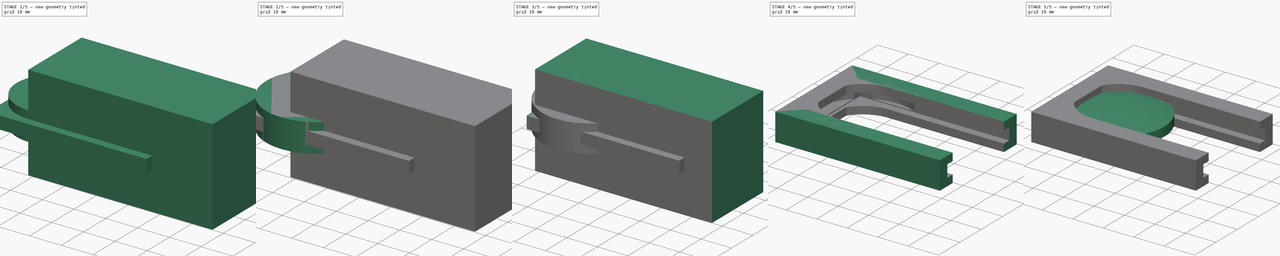
[diagram: build sequence overview — one tinted view per stage of 5, left to right]
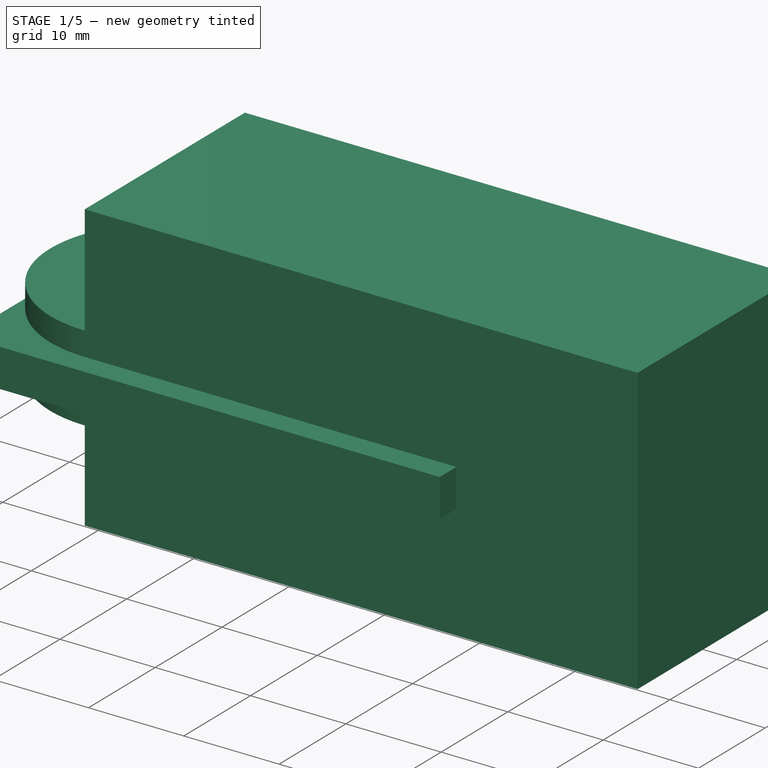
[diagram: stage 1 of 5 — iso view after this stage's code; geometry added in this stage tinted green]
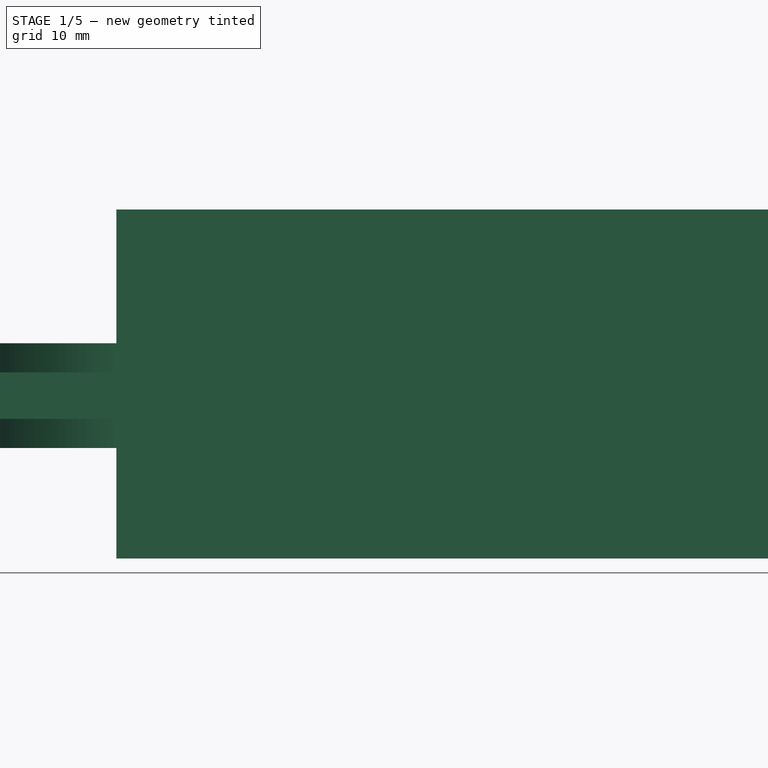
[diagram: stage 1 of 5 — front view after this stage's code; geometry added in this stage tinted green]
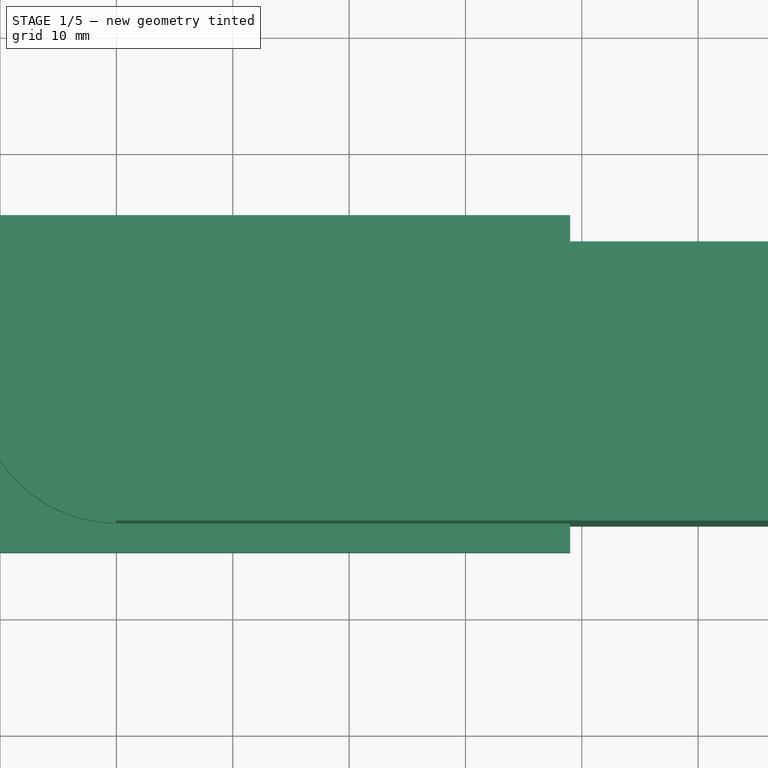
[diagram: stage 1 of 5 — top view after this stage's code; geometry added in this stage tinted green]
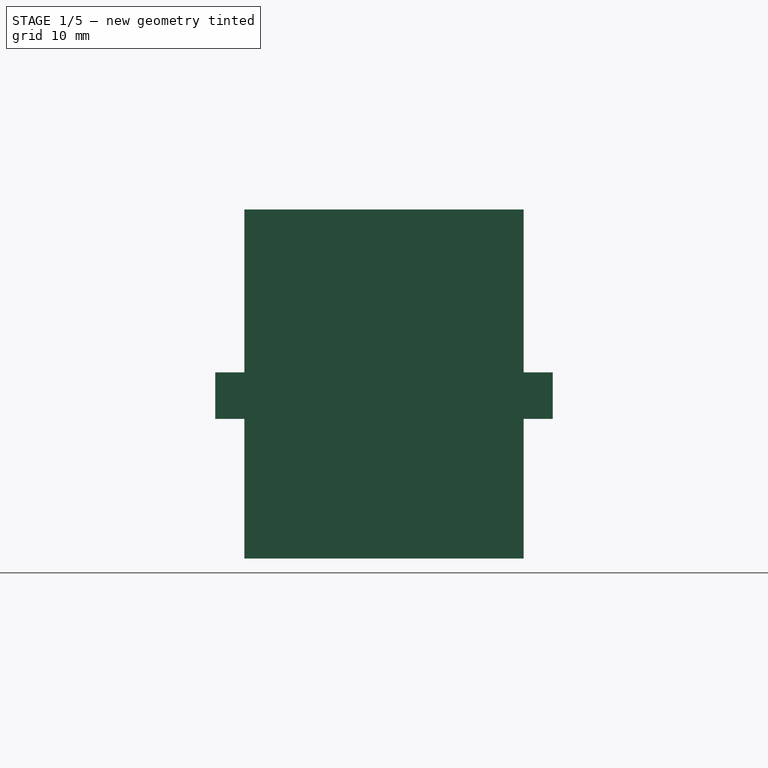
[diagram: stage 1 of 5 — right view after this stage's code; geometry added in this stage tinted green]
FCSTD DOCUMENT  (FreeCAD 0.18.4R)
Label: lens_holder
License: All rights reserved
LicenseURL: http://en.wikipedia.org/wiki/All_rights_reserved
objects: Part::Box×4, Part::Cylinder×3, Part::Compound×2, App::Part×2, Part::MultiFuse×2, Part::Cut×2, PartDesign::Body×1, Sketcher::SketchObject×1, PartDesign::Revolution×1, Part::Mirroring×1, Spreadsheet::Sheet×1
note: 18 computed .brp shape members not serialized (recipe doc carries the construction recipe); baked Part::Feature solids carry a one-line shape summary decoded from their .brp

FEATURE [Part::Box] Box002  label="inner lens extraction cube"
  AttacherType = Attacher::AttachEngine3D
  Height = 4
  Length = 50
  Placement = pos=(-11,-14.5,-2) rot=(0,0,1;0rad)
  Width = 29
FEATURE [Part::Box] Box003  label="inner cut cube001"
  AttacherType = Attacher::AttachEngine3D
  Height = 30
  Length = 58
  Placement = pos=(0,-12,-14) rot=(0,0,1;0rad)
  Width = 24
FEATURE [Part::Cylinder] Cylinder002  label="lens hole002"
  Angle = 360
  AttacherType = Attacher::AttachEngine3D
  Height = 9
  Placement = pos=(0,0,-4.5) rot=(0,0,1;0rad)
  Radius = 12
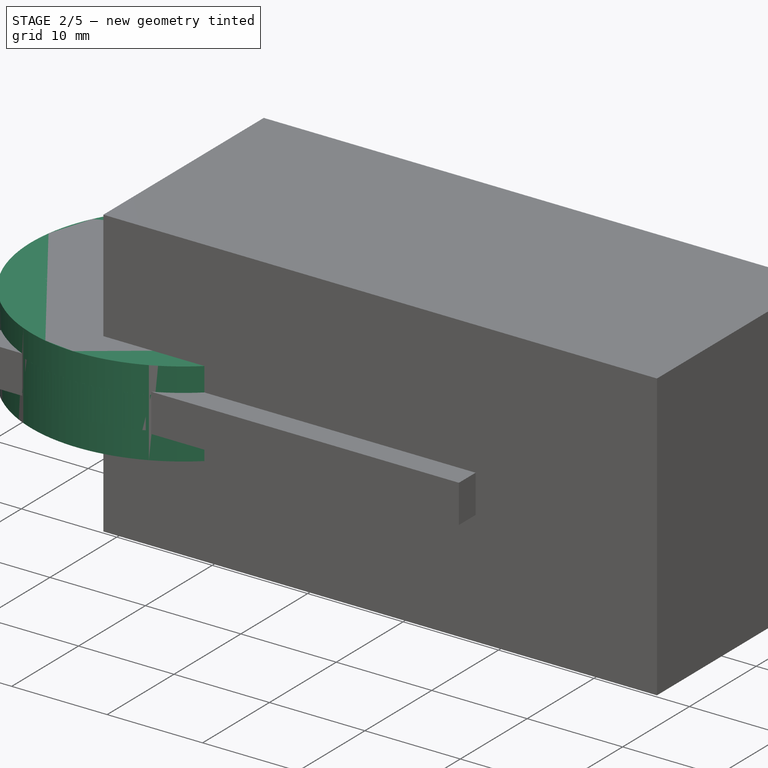
[diagram: stage 2 of 5 — iso view after this stage's code; geometry added in this stage tinted green]
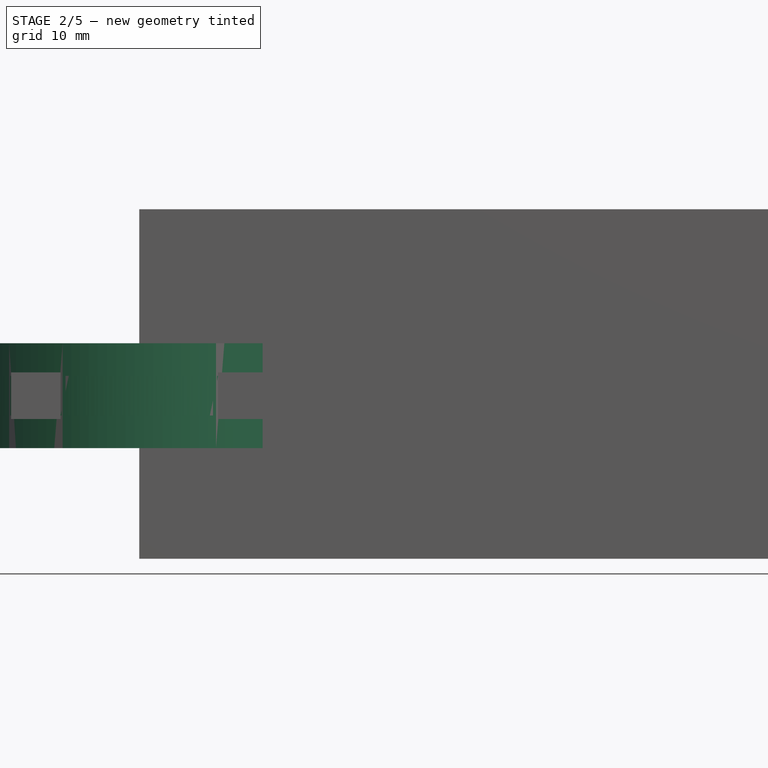
[diagram: stage 2 of 5 — front view after this stage's code; geometry added in this stage tinted green]
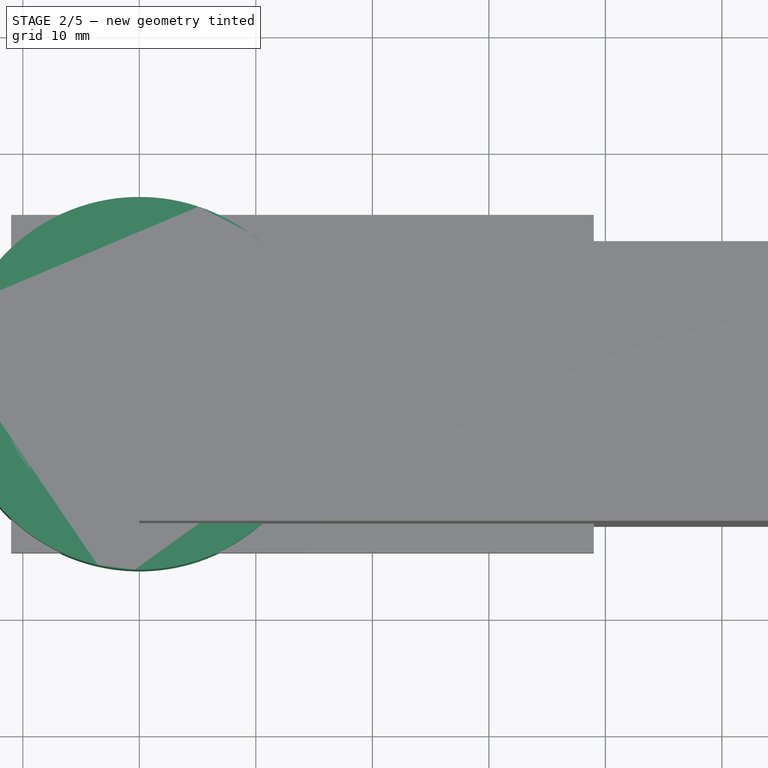
[diagram: stage 2 of 5 — top view after this stage's code; geometry added in this stage tinted green]
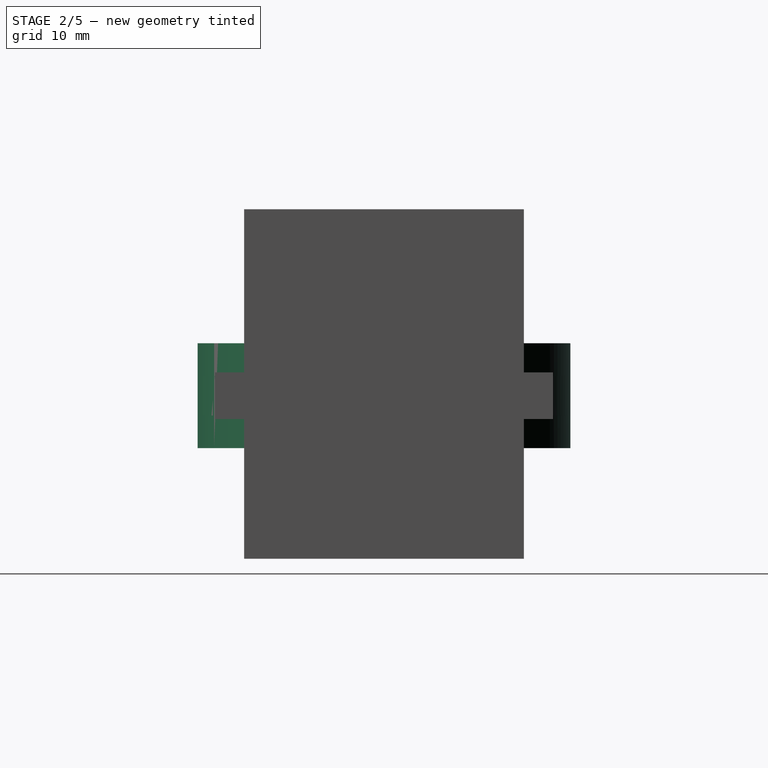
[diagram: stage 2 of 5 — right view after this stage's code; geometry added in this stage tinted green]
FEATURE [Part::Cylinder] Cylinder  label="lens hole"
  Angle = 360
  AttacherType = Attacher::AttachEngine3D
  Height = 3.4
  Placement = pos=(0,0,-1.7) rot=(0,0,1;0rad)
  Radius = 16
FEATURE [Part::Cylinder] Cylinder001  label="lens hole001"
  Angle = 360
  AttacherType = Attacher::AttachEngine3D
  Height = 9
  Placement = pos=(0,0,-4.5) rot=(0,0,1;0rad)
  Radius = 16
FEATURE [Part::MultiFuse] Fusion001  label="another cut fusion"
  Shapes = -> [Cylinder,Box002,Box003,Cylinder002]
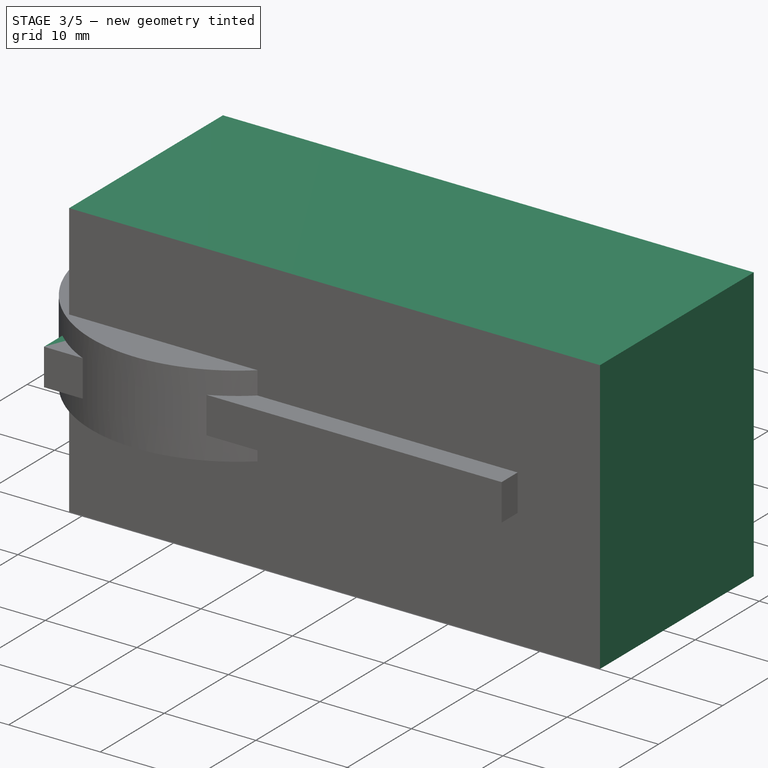
[diagram: stage 3 of 5 — iso view after this stage's code; geometry added in this stage tinted green]
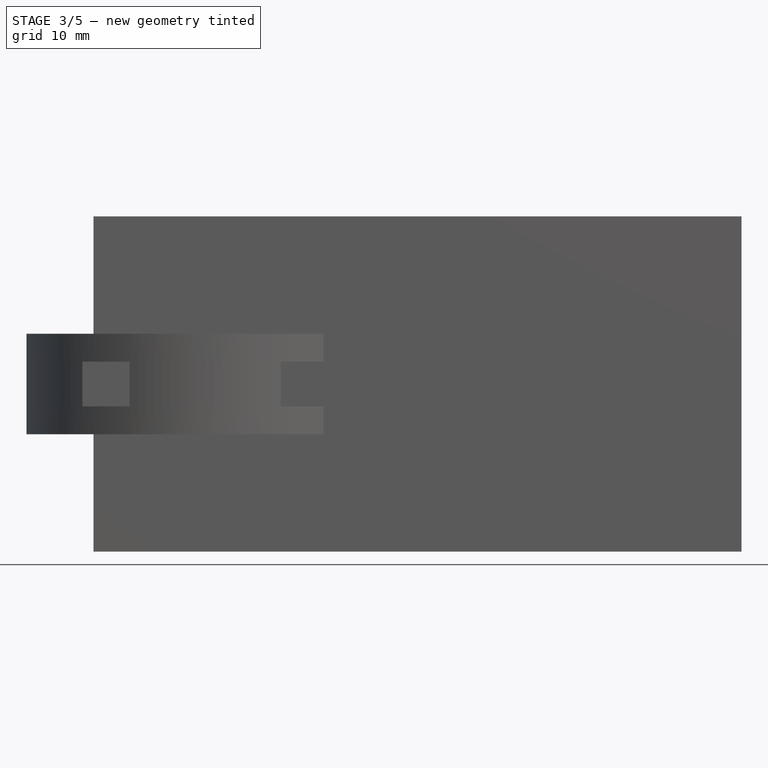
[diagram: stage 3 of 5 — front view after this stage's code; geometry added in this stage tinted green]
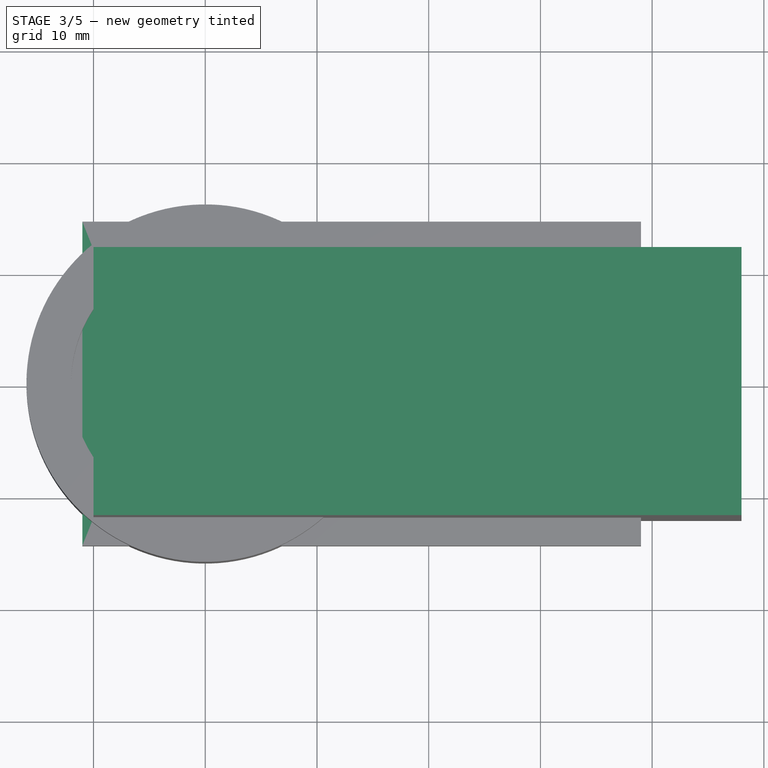
[diagram: stage 3 of 5 — top view after this stage's code; geometry added in this stage tinted green]
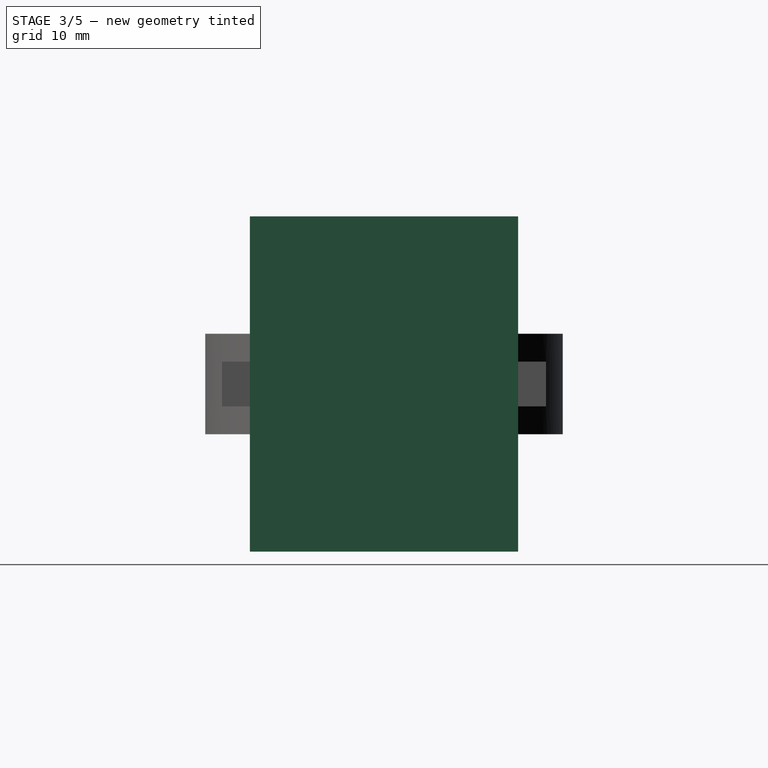
[diagram: stage 3 of 5 — right view after this stage's code; geometry added in this stage tinted green]
FEATURE [Part::Box] Box001  label="inner cut cube"
  AttacherType = Attacher::AttachEngine3D
  Height = 30
  Length = 58
  Placement = pos=(-10,-12,-15) rot=(0,0,1;0rad)
  Width = 24
FEATURE [Part::MultiFuse] Fusion  label="holder cut fusion"
  Shapes = -> [Box001,Cylinder,Box002]
FEATURE [Part::Cut] Cut001
  Base = -> Cylinder001
  Tool = -> Fusion001
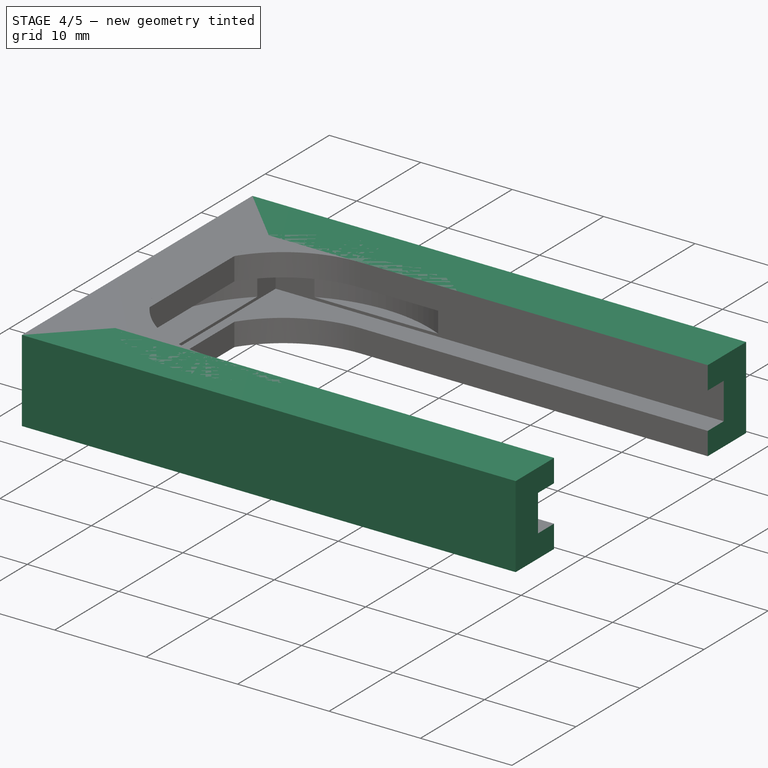
[diagram: stage 4 of 5 — iso view after this stage's code; geometry added in this stage tinted green]
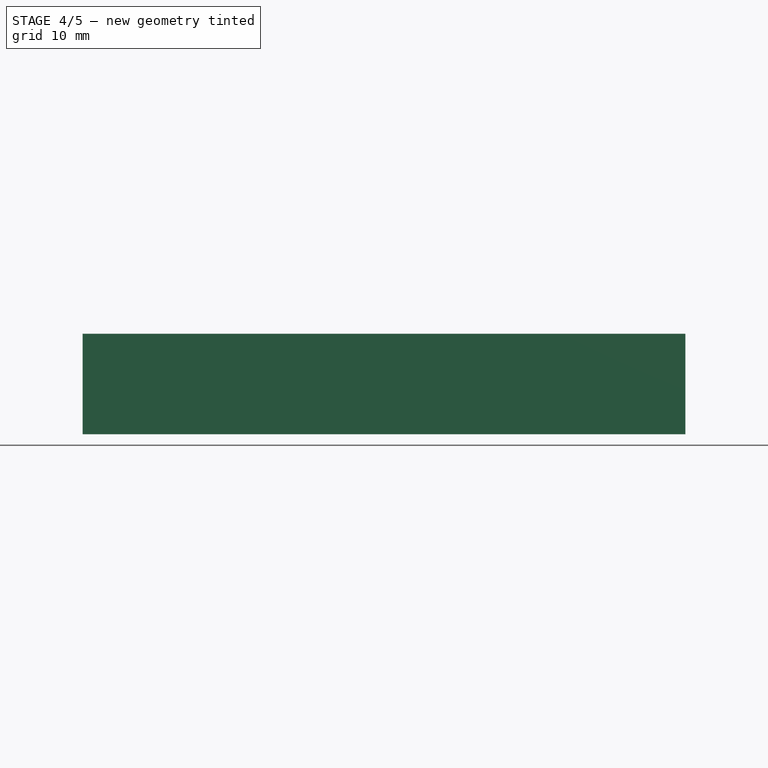
[diagram: stage 4 of 5 — front view after this stage's code; geometry added in this stage tinted green]
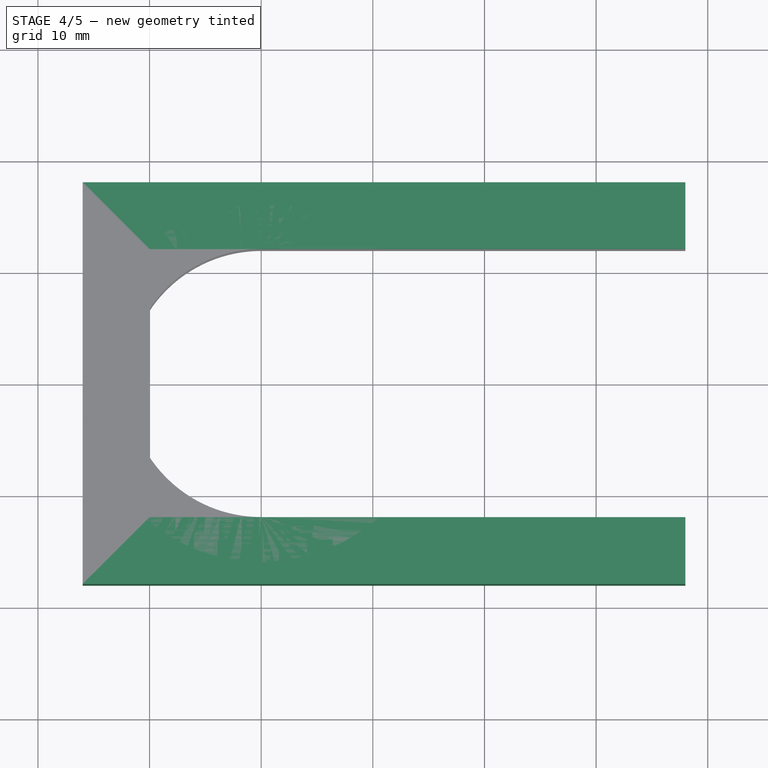
[diagram: stage 4 of 5 — top view after this stage's code; geometry added in this stage tinted green]
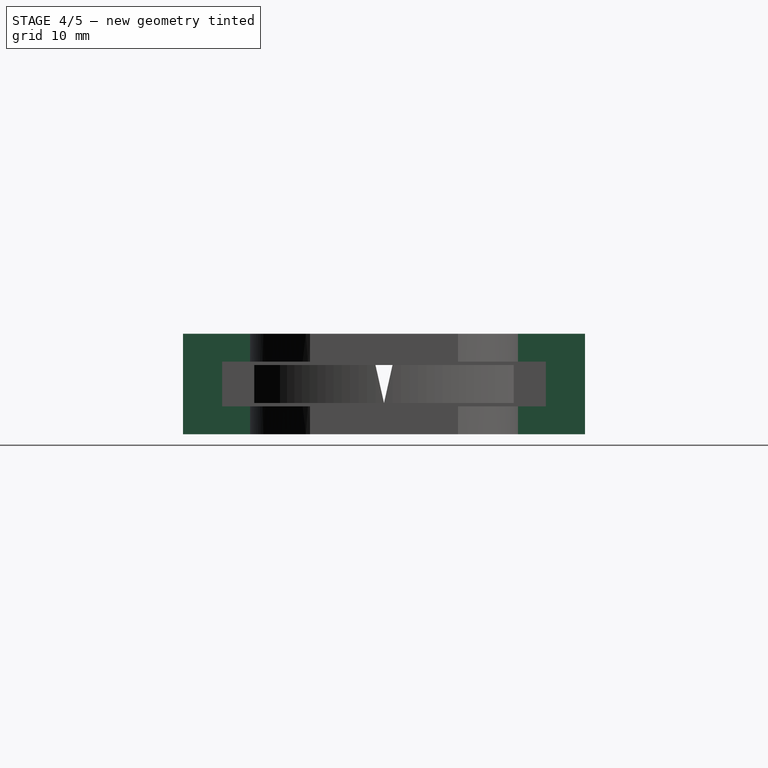
[diagram: stage 4 of 5 — right view after this stage's code; geometry added in this stage tinted green]
FEATURE [App::Part] Part  label="lens mockup"
  Group = -> [Body,Sketch,Revolution,Part__Mirroring,Compound]
  Origin = -> Origin
FEATURE [Part::Box] Box  label="outer cube"
  AttacherType = Attacher::AttachEngine3D
  Height = 9
  Length = 54
  Placement = pos=(-16,-18,-4.5) rot=(0,0,1;0rad)
  Width = 36
FEATURE [Part::Cut] Cut  label="holder cut"
  Base = -> Box
  Tool = -> Fusion
FEATURE [Part::Compound] Compound001  label="lens holder compound"
  Links = -> [Cut,Cut001]
FEATURE [App::Part] Part001  label="holder part"
  Group = -> [Box,Box001,Cut,Cylinder,Box002,Fusion,Cylinder001,Fusion001,Cut001,Box003,Cylinder002,Compound001]
  Origin = -> Origin002
FEATURE [Spreadsheet::Sheet] Spreadsheet  label="з"
  cells = A1=lens_focus; B1=50; A2=lens_r; B2=15; A3=lens_rim_height; B3=3
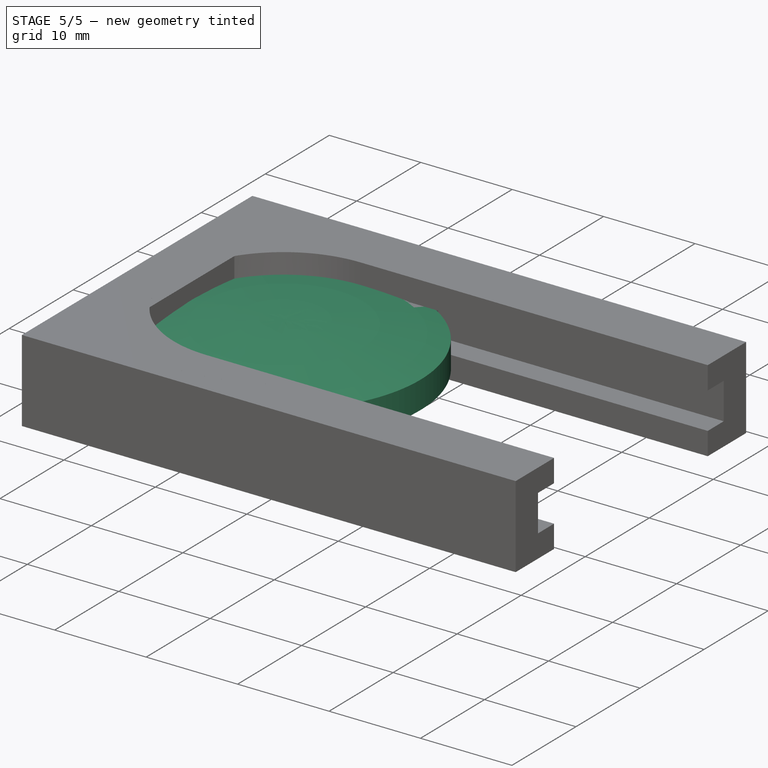
[diagram: stage 5 of 5 — iso view after this stage's code; geometry added in this stage tinted green]
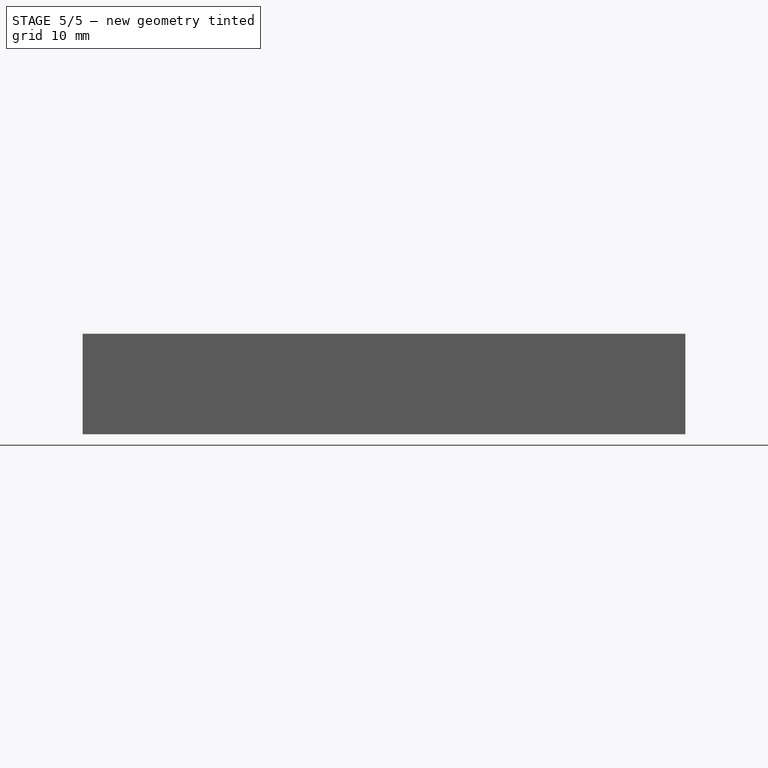
[diagram: stage 5 of 5 — front view after this stage's code; geometry added in this stage tinted green]
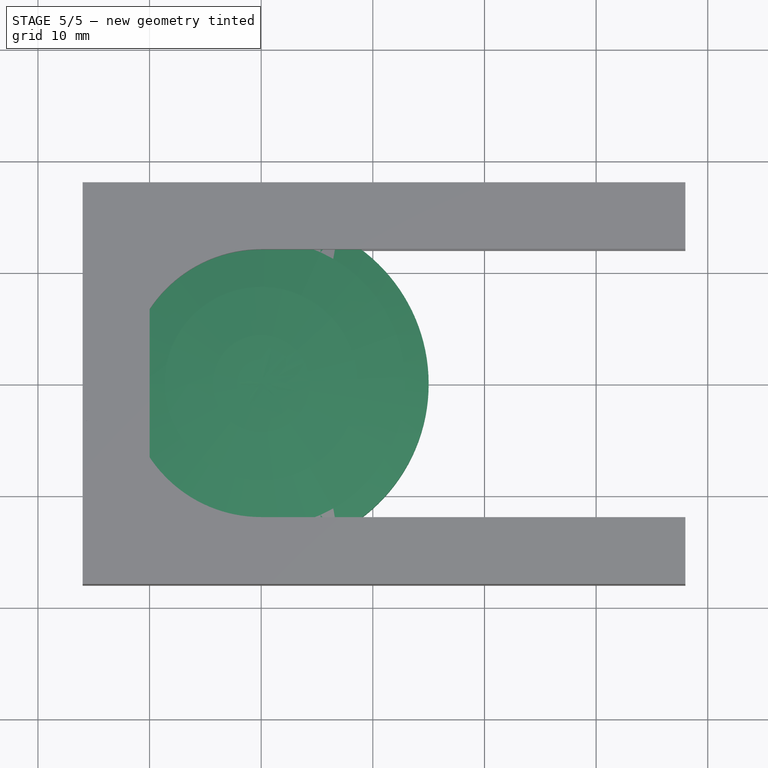
[diagram: stage 5 of 5 — top view after this stage's code; geometry added in this stage tinted green]
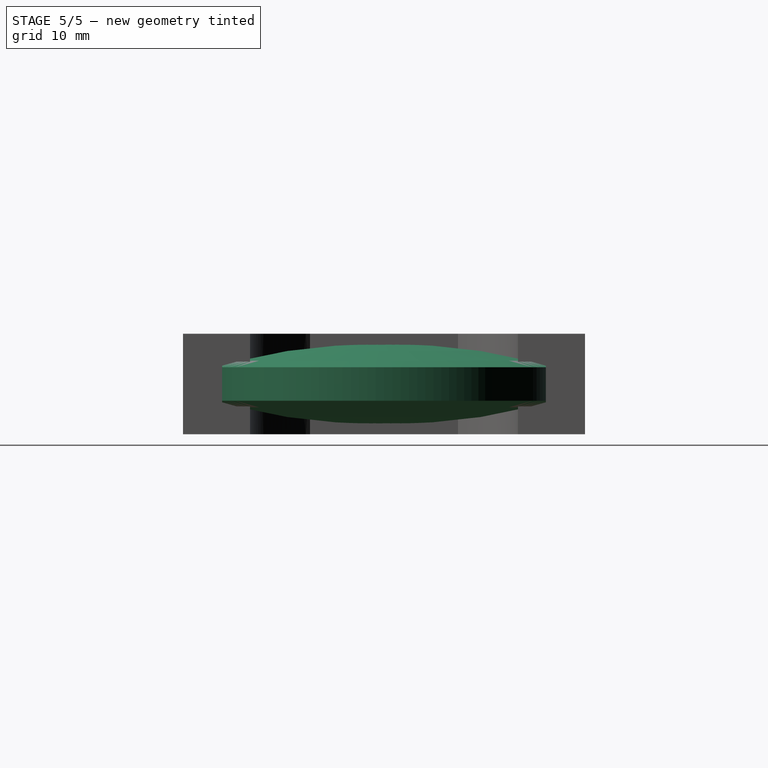
[diagram: stage 5 of 5 — right view after this stage's code; geometry added in this stage tinted green]
FEATURE [PartDesign::Body] Body
  Origin = -> Origin001
FEATURE [Sketcher::SketchObject] Sketch
  MapMode = 5
  Placement = pos=(0,0,0) rot=(1,0,0;1.5708rad)
  Support = -> [XZ_Plane001]
  sketch-geometry (4):
    g0: LineSegment StartX=-15 StartY=1.5 StartZ=0 EndX=-15 EndY=0 EndZ=0
    g1: LineSegment StartX=1.77018e-11 StartY=3.5 StartZ=0 EndX=0 EndY=0 EndZ=0
    g2: ArcOfCircle CenterX=-1.44381 CenterY=-42.9214 CenterZ=0 NormalX=0 NormalY=0 NormalZ=1 AngleXU=0 Radius=46.4438 StartAngle=1.5397 EndAngle=1.86699
    g3: LineSegment StartX=-15 StartY=0 StartZ=0 EndX=0 EndY=0 EndZ=0
  constraints (11):
    c: DistanceY(g0,g0) = 1.5
    c: PointOnObject(g1,g-2)
    c: DistanceY(g1,g1) = 3.5
    c: Coincident(g2,g0)
    c: Coincident(g2,g1)
    c: DistanceX(g0,g1) = 15
    c: Coincident(g1,g-1)
    c: PointOnObject(g0,g-1)
    c: Vertical(g0)
    c: Coincident(g3,g0)
    c: Coincident(g3,g1)
FEATURE [PartDesign::Revolution] Revolution
  Angle = 360
  Axis = (0,2e-16,1)
  Base = (0,0,0)
  Placement = pos=(0,0,0) rot=(1,0,0;1.5708rad)
  Profile = -> Sketch
  ReferenceAxis = -> Sketch [V_Axis]
FEATURE [Part::Mirroring] Part__Mirroring  label="Revolution (Mirror #1)"
  Base = (0,0,0)
  Normal = (0,0,1)
  Source = -> Revolution
FEATURE [Part::Compound] Compound  label="lens compound"
  Links = -> [Revolution,Part__Mirroring]
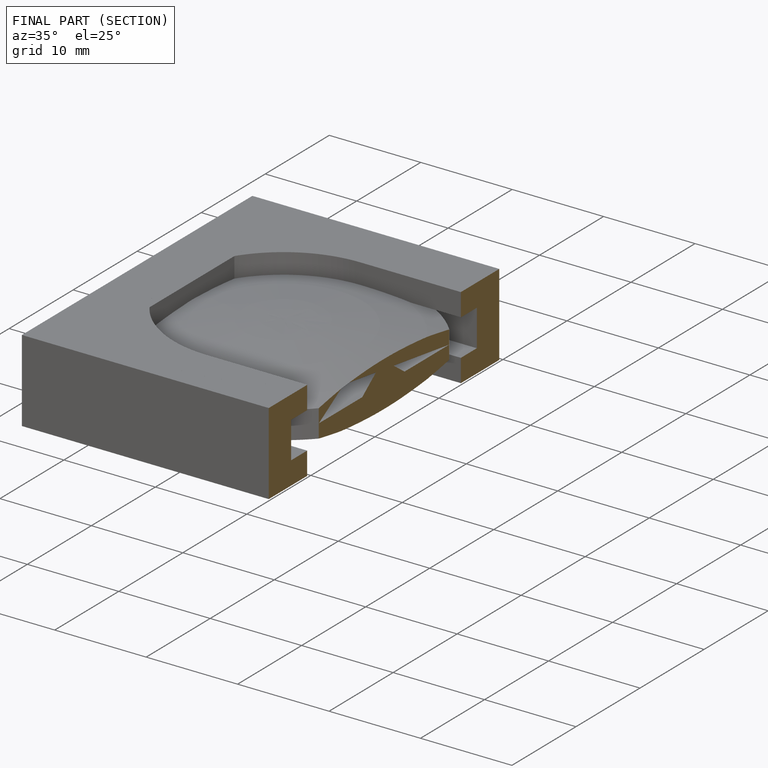
[diagram: finished part — half-section view (interior)]
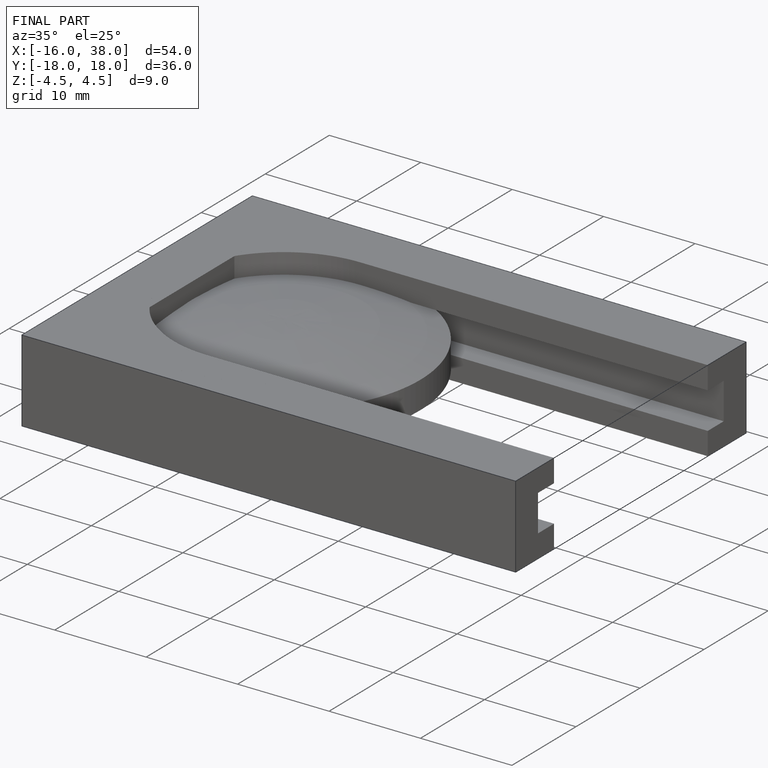
[diagram: finished part — iso view with bounding-box wireframe]
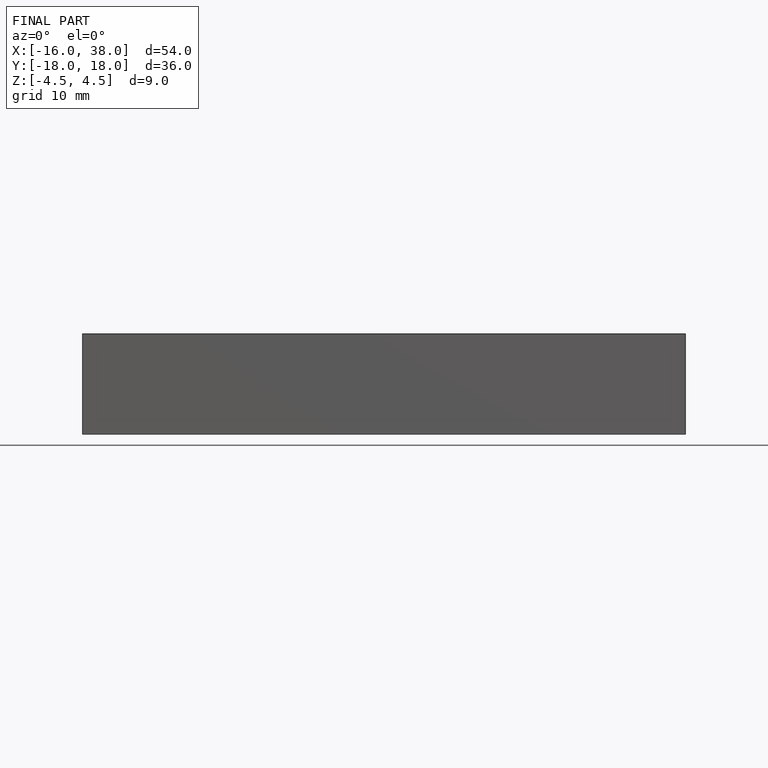
[diagram: finished part — front view with bounding-box wireframe]
